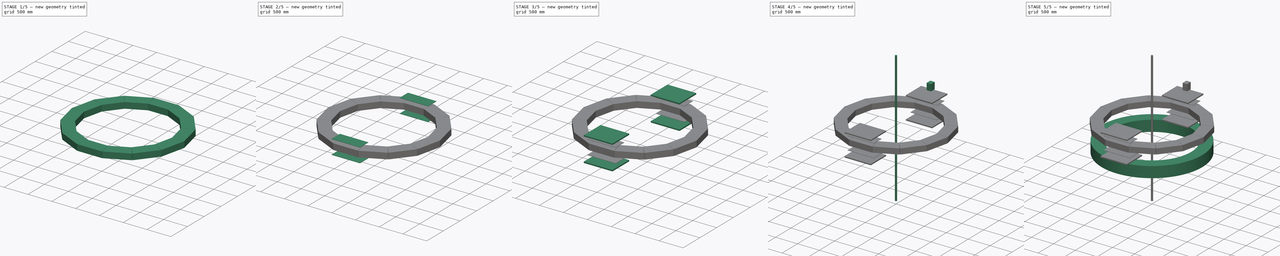
[diagram: build sequence overview — one tinted view per stage of 5, left to right]
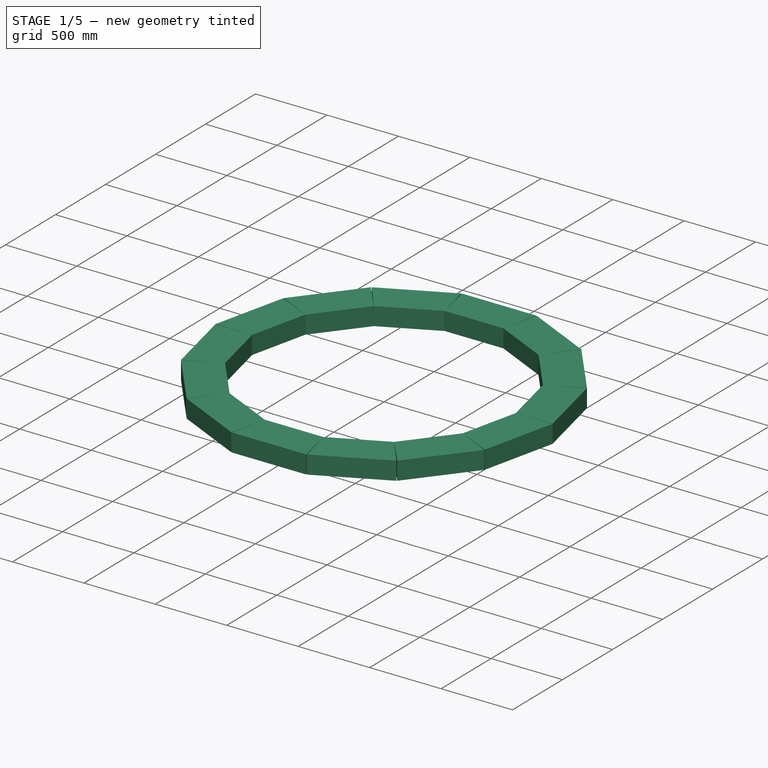
[diagram: stage 1 of 5 — iso view after this stage's code; geometry added in this stage tinted green]
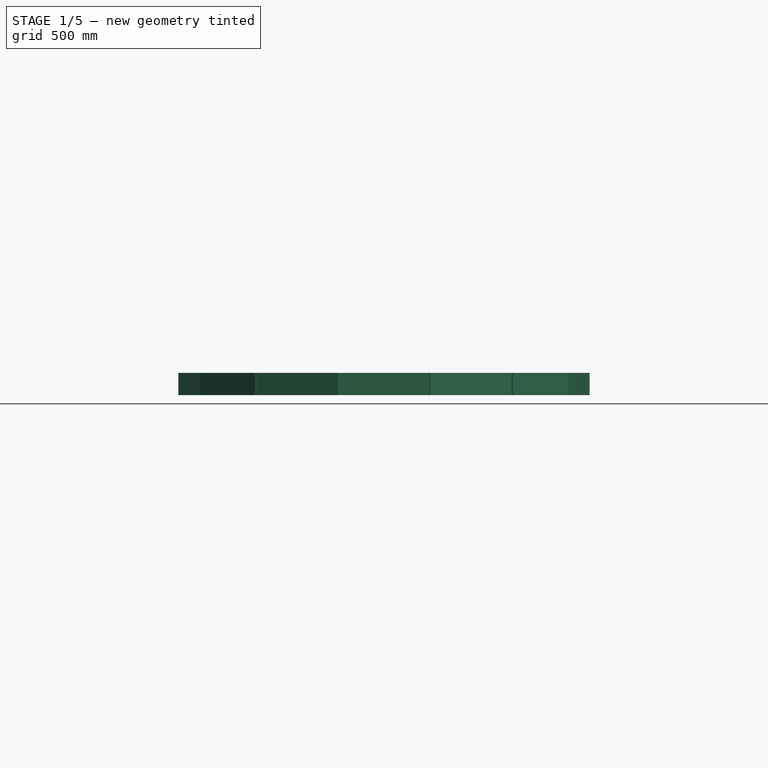
[diagram: stage 1 of 5 — front view after this stage's code; geometry added in this stage tinted green]
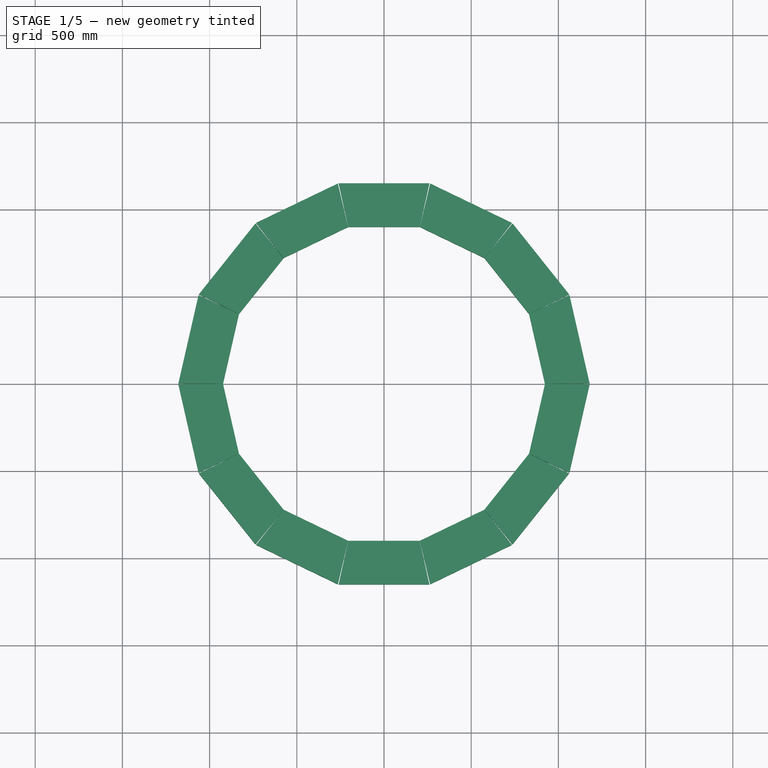
[diagram: stage 1 of 5 — top view after this stage's code; geometry added in this stage tinted green]
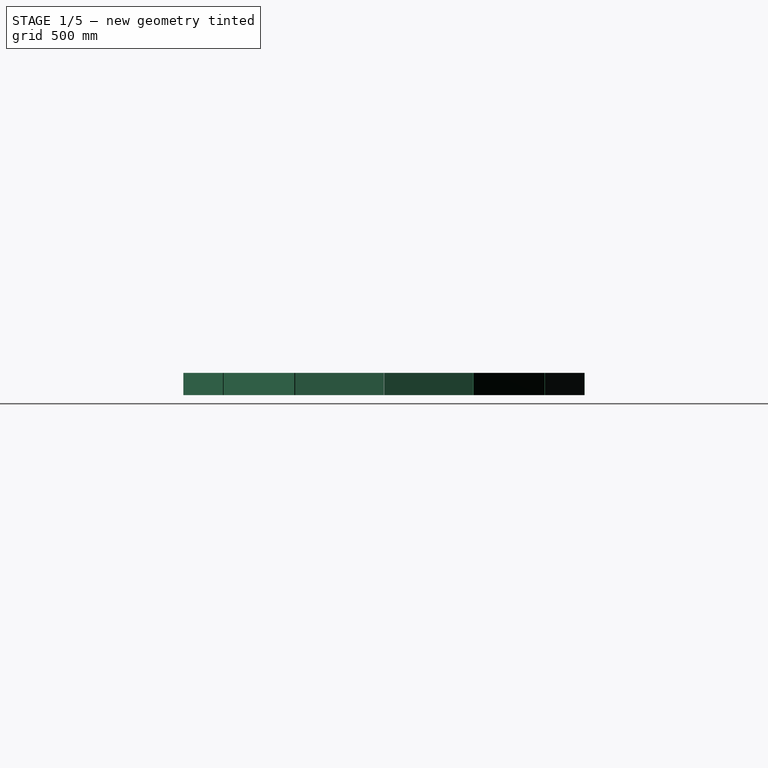
[diagram: stage 1 of 5 — right view after this stage's code; geometry added in this stage tinted green]
FCSTD DOCUMENT  (FreeCAD 0.16R)
Label: Pb_GEM_TS_Lucite_TS_GEM_PbF2
License: CreativeCommons Attribution-NonCommercial-ShareAlike
LicenseURL: http://creativecommons.org/licenses/by-nc-sa/4.0/
objects: Part::FeaturePython×8, Raytracing::RayFeature×7, Sketcher::SketchObject×5, Part::Cylinder×3, PartDesign::Pad×3, Part::Cut×1, Part::Box×1, Part::Loft×1, Raytracing::RayProject×1
note: 25 computed .brp shape members not serialized (recipe doc carries the construction recipe); baked Part::Feature solids carry a one-line shape summary decoded from their .brp

FEATURE [Sketcher::SketchObject] Sketch  label="LuciteProfile"
  sketch-geometry (4):
    g0: LineSegment StartX=205 StartY=900 StartZ=0 EndX=260 EndY=1150 EndZ=0
    g1: LineSegment StartX=260 StartY=1150 StartZ=0 EndX=-260 EndY=1150 EndZ=0
    g2: LineSegment StartX=-260 StartY=1150 StartZ=0 EndX=-205 EndY=900 EndZ=0
    g3: LineSegment StartX=-205 StartY=900 StartZ=0 EndX=205 EndY=900 EndZ=0
  constraints (12):
    c: Coincident(g0,g1)
    c: Horizontal(g1)
    c: Coincident(g1,g2)
    c: Coincident(g2,g3)
    c: Coincident(g3,g0)
    c: Horizontal(g3)
    c: Symmetric(g1,g0,g-2)
    c: Symmetric(g2,g0,g-2)
    c: Distance(g1) = 520
    c: Distance(g3) = 410
    c: DistanceY(g2,g1) = 250
    c: DistanceY(g-1,g2) = 900
FEATURE [PartDesign::Pad] Pad  label="LuciteModule"
  Length = 25.4
  Length2 = 100
  Sketch = -> Sketch
  Type = 0
FEATURE [Sketcher::SketchObject] Sketch003  label="LightGuideLucite"
  Placement = pos=(0,1150,0) rot=(0,0.707107,0.707107;3.14159rad)
  sketch-geometry (4):
    g0: LineSegment StartX=-260 StartY=0 StartZ=0 EndX=260 EndY=0 EndZ=0
    g1: LineSegment StartX=260 StartY=0 StartZ=0 EndX=260 EndY=127 EndZ=0
    g2: LineSegment StartX=260 StartY=127 StartZ=0 EndX=-260 EndY=127 EndZ=0
    g3: LineSegment StartX=-260 StartY=127 StartZ=0 EndX=-260 EndY=0 EndZ=0
  constraints (12):
    c: Coincident(g0,g1)
    c: Coincident(g1,g2)
    c: Coincident(g2,g3)
    c: Coincident(g3,g0)
    c: Horizontal(g0)
    c: Horizontal(g2)
    c: Vertical(g1)
    c: Vertical(g3)
    c: PointOnObject(g0,g-1)
    c: Symmetric(g2,g1,g-2)
    c: Distance(g2) = 520
    c: Distance(g3) = 127
FEATURE [Sketcher::SketchObject] Sketch004  label="LightGuidePMT"
  Placement = pos=(0,1400,0) rot=(1,0,0;1.5708rad)
  sketch-geometry (4):
    g0: LineSegment StartX=-63.5 StartY=0 StartZ=0 EndX=63.5 EndY=0 EndZ=0
    g1: LineSegment StartX=63.5 StartY=0 StartZ=0 EndX=63.5 EndY=127 EndZ=0
    g2: LineSegment StartX=63.5 StartY=127 StartZ=0 EndX=-63.5 EndY=127 EndZ=0
    g3: LineSegment StartX=-63.5 StartY=127 StartZ=0 EndX=-63.5 EndY=0 EndZ=0
  constraints (12):
    c: Coincident(g0,g1)
    c: Coincident(g1,g2)
    c: Coincident(g2,g3)
    c: Coincident(g3,g0)
    c: Horizontal(g0)
    c: Horizontal(g2)
    c: Vertical(g1)
    c: Vertical(g3)
    c: PointOnObject(g0,g-1)
    c: Equal(g3,g2)
    c: Symmetric(g2,g1,g-2)
    c: Distance(g2) = 127
FEATURE [Part::FeaturePython] Array007  label="LuciteDetector"  # Draft array (typed FeaturePython)
  Angle = 360
  ArrayType = 0
  Axis = (0,0,1)
  Base = -> Pad
  Center = (0,0,0)
  Fuse = false
  IntervalAxis = (0,0,0)
  IntervalX = (0,0,0)
  IntervalY = (0,0,0)
  IntervalZ = (0,0,25.4)
  NumberPolar = 1
  NumberX = 1
  NumberY = 1
  NumberZ = 5
FEATURE [Part::Loft] Loft  label="LightGuideModule"
  Closed = false
  Ruled = false
  Sections = -> [Sketch003,Sketch004]
  Solid = false
FEATURE [Part::FeaturePython] Array012  label="Lucite"  # Draft array (typed FeaturePython)
  Angle = 360
  ArrayType = 1
  Axis = (0,0,1)
  Base = -> Array007
  Center = (0,0,0)
  Fuse = false
  IntervalAxis = (0,0,0)
  IntervalX = (0,0,0)
  IntervalY = (-5,0,0)
  IntervalZ = (0,0,0)
  NumberPolar = 14
  NumberX = 1
  NumberY = 1
  NumberZ = 1
  Placement = pos=(0,0,500) rot=(0,0,1;0rad)
FEATURE [Part::FeaturePython] Array013  label="LightGuide"  # Draft array (typed FeaturePython)
  Angle = 360
  ArrayType = 1
  Axis = (0,0,1)
  Base = -> Loft
  Center = (0,0,0)
  Fuse = false
  IntervalAxis = (0,0,0)
  IntervalX = (1,0,0)
  IntervalY = (0,1,0)
  IntervalZ = (0,0,0)
  NumberPolar = 14
  NumberX = 1
  NumberY = 1
  NumberZ = 1
  Placement = pos=(0,0,500) rot=(0,0,1;0rad)
FEATURE [Raytracing::RayFeature] Cut_View
  Result = <blob: 343908 chars omitted>
  Source = -> Cut
  Transparency = 75
FEATURE [Raytracing::RayFeature] Array006_View
  Result = <blob: 74975 chars omitted>
  Source = -> Array006
  Transparency = 50
FEATURE [Raytracing::RayFeature] Cylinder002_View
  Result = <blob: 24583 chars omitted>
  Source = -> Cylinder002
  Transparency = 0
FEATURE [Raytracing::RayFeature] Array008_View
  Result = <blob: 10871 chars omitted>
  Source = -> Array008
  Transparency = 10
FEATURE [Raytracing::RayFeature] Array011_View
  Result = <blob: 11055 chars omitted>
  Source = -> Array011
  Transparency = 50
FEATURE [Raytracing::RayFeature] Array013_View
  Result = <blob: 1947668 chars omitted>
  Source = -> Array013
  Transparency = 0
FEATURE [Raytracing::RayFeature] Array012_View
  Result = <blob: 205583 chars omitted>
  Source = -> Array012
  Transparency = 50
FEATURE [Raytracing::RayProject] PovProject
  Camera = // declares positon and view direction\n\n// Generated by FreeCAD (http://www.freecadweb.org/)\n#declare cam_location =  <-1542.98,-454.674,1387.84>;\n#declare cam_look_at  = <-29.3147,470.562,768.261>;\n#declare cam_sky      = <0.309302,0.12525,0.942679>;\n#declare cam_angle    = 45; \ncamera {\n  location  cam_location\n  look_at   cam_look_at\n  sky       cam_sky\n  angle     cam_angle \n  right x*800/600\n}
  Group = -> [Cut_View,Array006_View,Cylinder002_View,Array008_View,Array011_View,Array013_View,Array012_View]
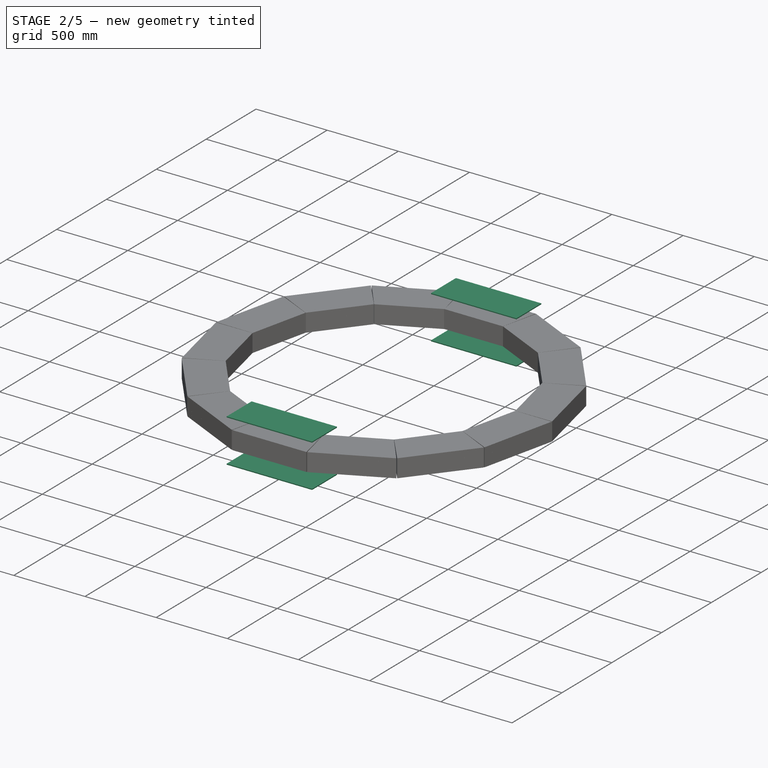
[diagram: stage 2 of 5 — iso view after this stage's code; geometry added in this stage tinted green]
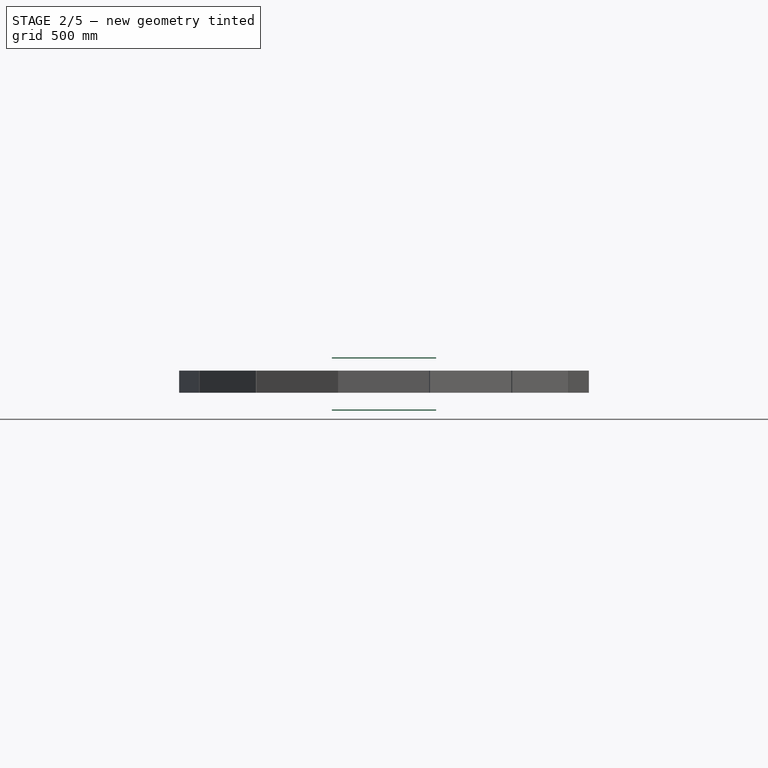
[diagram: stage 2 of 5 — front view after this stage's code; geometry added in this stage tinted green]
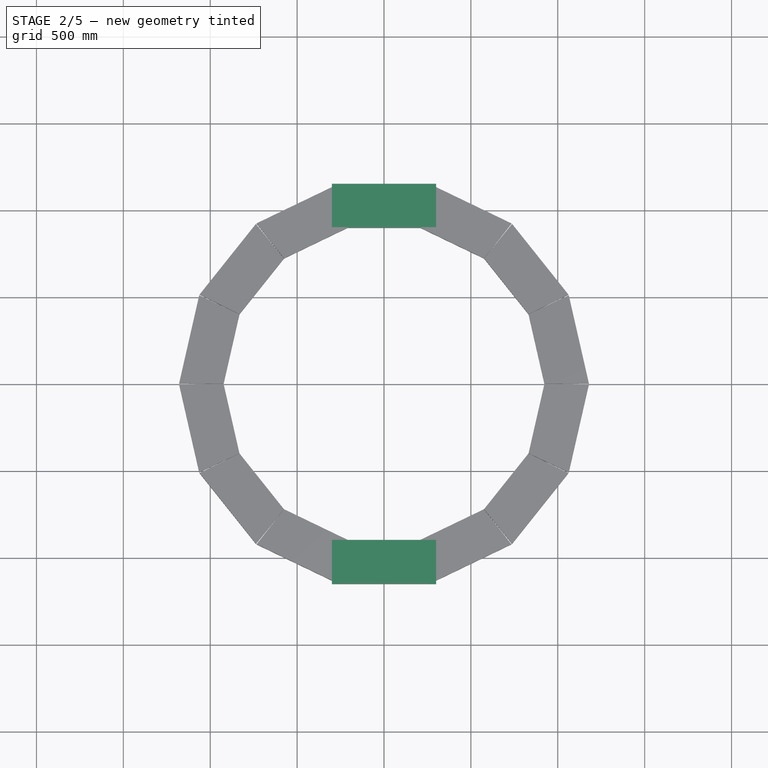
[diagram: stage 2 of 5 — top view after this stage's code; geometry added in this stage tinted green]
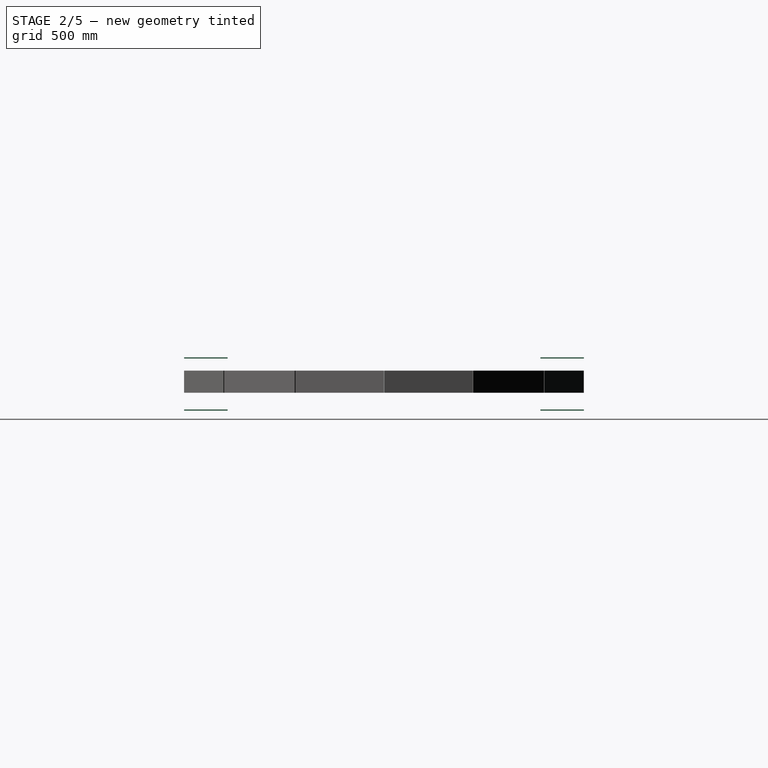
[diagram: stage 2 of 5 — right view after this stage's code; geometry added in this stage tinted green]
FEATURE [Sketcher::SketchObject] Sketch002  label="TSProfile"
  sketch-geometry (4):
    g0: LineSegment StartX=-300 StartY=900 StartZ=0 EndX=300 EndY=900 EndZ=0
    g1: LineSegment StartX=300 StartY=900 StartZ=0 EndX=300 EndY=1150 EndZ=0
    g2: LineSegment StartX=300 StartY=1150 StartZ=0 EndX=-300 EndY=1150 EndZ=0
    g3: LineSegment StartX=-300 StartY=1150 StartZ=0 EndX=-300 EndY=900 EndZ=0
  constraints (12):
    c: Coincident(g0,g1)
    c: Coincident(g1,g2)
    c: Coincident(g2,g3)
    c: Coincident(g3,g0)
    c: Horizontal(g0)
    c: Horizontal(g2)
    c: Vertical(g1)
    c: Vertical(g3)
    c: Symmetric(g0,g0,g-2)
    c: Distance(g3) = 250
    c: Distance(g2) = 600
    c: DistanceY(g-1,g0) = 900
FEATURE [PartDesign::Pad] Pad002  label="TSModule"
  Length = 6.35
  Length2 = 100
  Midplane = true
  Sketch = -> Sketch002
  Type = 0
FEATURE [Part::FeaturePython] Array010  label="TSPair"  # Draft array (typed FeaturePython)
  Angle = 360
  ArrayType = 0
  Axis = (0,0,1)
  Base = -> Pad002
  Center = (0,0,0)
  Fuse = false
  IntervalAxis = (0,0,0)
  IntervalX = (0,0,0)
  IntervalY = (0,0,0)
  IntervalZ = (0,0,300)
  NumberPolar = 1
  NumberX = 1
  NumberY = 1
  NumberZ = 2
  Placement = pos=(0,0,400) rot=(0,0,1;0rad)
FEATURE [Part::FeaturePython] Array011  label="TS"  # Draft array (typed FeaturePython)
  Angle = 180
  ArrayType = 1
  Axis = (0,0,1)
  Base = -> Array010
  Center = (0,0,0)
  Fuse = false
  IntervalAxis = (0,0,0)
  IntervalX = (0,0,0)
  IntervalY = (0,0,0)
  IntervalZ = (0,0,0)
  NumberPolar = 2
  NumberX = 1
  NumberY = 1
  NumberZ = 1
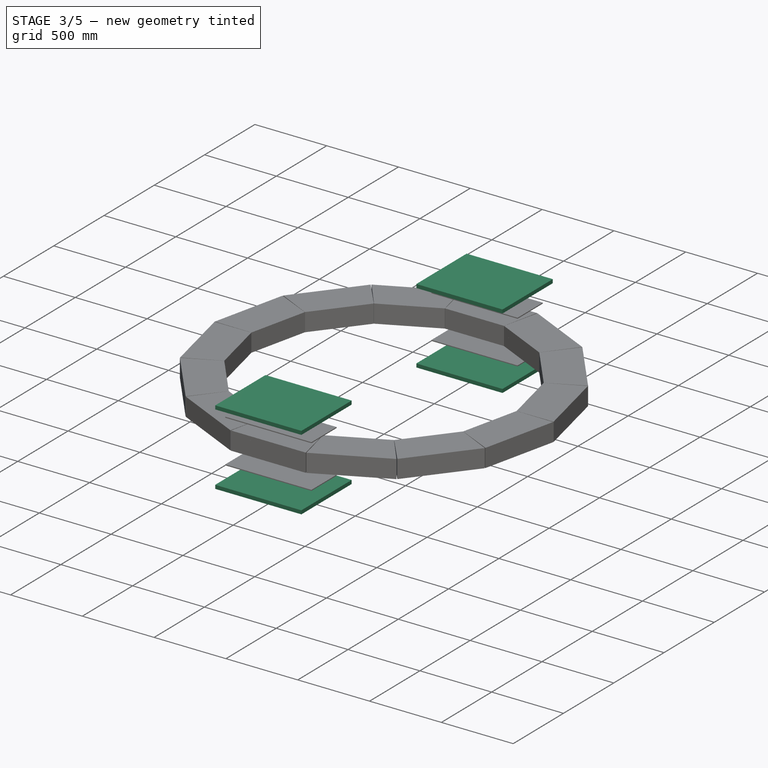
[diagram: stage 3 of 5 — iso view after this stage's code; geometry added in this stage tinted green]
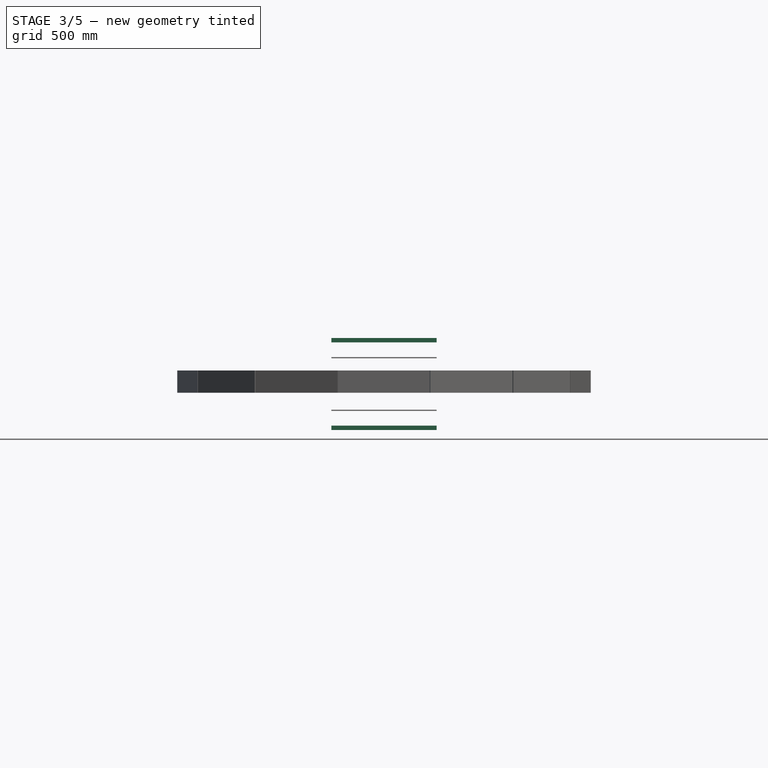
[diagram: stage 3 of 5 — front view after this stage's code; geometry added in this stage tinted green]
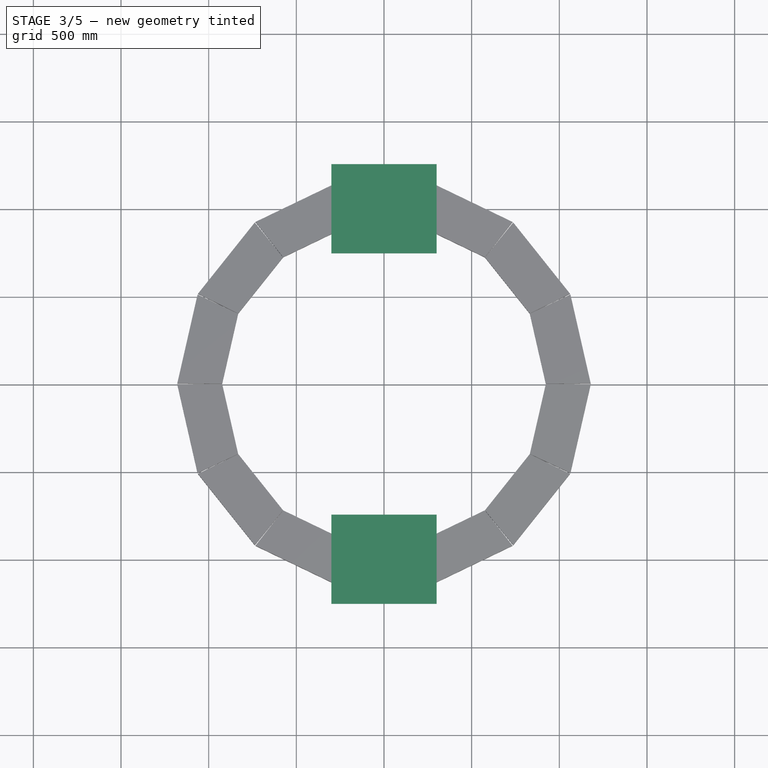
[diagram: stage 3 of 5 — top view after this stage's code; geometry added in this stage tinted green]
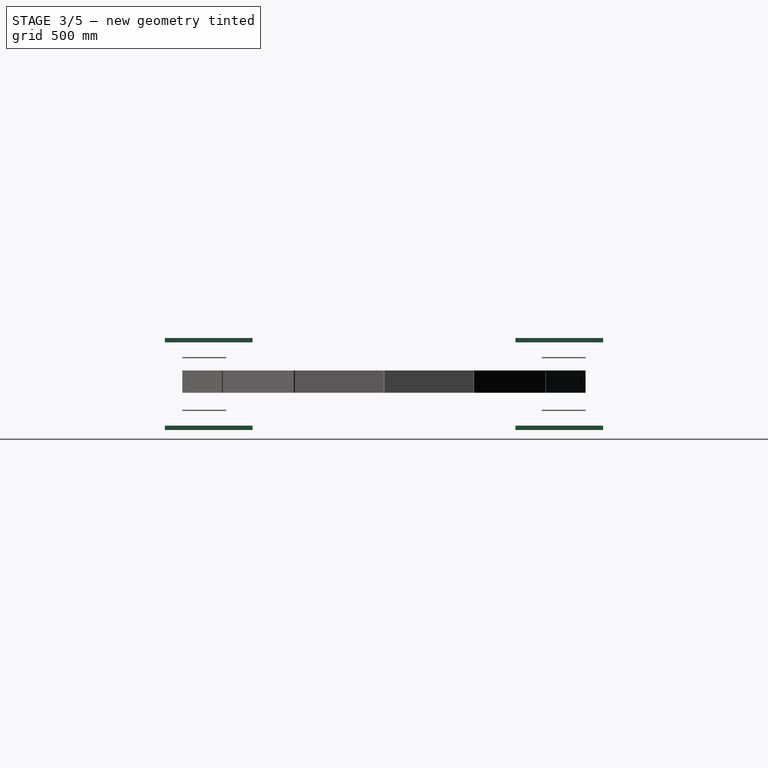
[diagram: stage 3 of 5 — right view after this stage's code; geometry added in this stage tinted green]
FEATURE [Sketcher::SketchObject] Sketch001  label="GEMProfile"
  sketch-geometry (4):
    g0: LineSegment StartX=-300 StartY=750 StartZ=0 EndX=300 EndY=750 EndZ=0
    g1: LineSegment StartX=300 StartY=750 StartZ=0 EndX=300 EndY=1250 EndZ=0
    g2: LineSegment StartX=300 StartY=1250 StartZ=0 EndX=-300 EndY=1250 EndZ=0
    g3: LineSegment StartX=-300 StartY=1250 StartZ=0 EndX=-300 EndY=750 EndZ=0
  constraints (12):
    c: Coincident(g0,g1)
    c: Coincident(g1,g2)
    c: Coincident(g2,g3)
    c: Coincident(g3,g0)
    c: Horizontal(g0)
    c: Horizontal(g2)
    c: Vertical(g1)
    c: Vertical(g3)
    c: Symmetric(g0,g0,g-2)
    c: Distance(g0) = 600
    c: Distance(g3) = 500
    c: DistanceY(g-1,g0) = 750
FEATURE [PartDesign::Pad] Pad001  label="GEMModule"
  Length = 25.4
  Length2 = 100
  Midplane = true
  Sketch = -> Sketch001
  Type = 0
FEATURE [Part::FeaturePython] Array  label="GEMPair"  # Draft array (typed FeaturePython)
  Angle = 360
  ArrayType = 0
  Axis = (0,0,1)
  Base = -> Pad001
  Center = (0,0,0)
  Fuse = false
  IntervalAxis = (0,0,0)
  IntervalX = (0,0,0)
  IntervalY = (0,0,0)
  IntervalZ = (0,0,500)
  NumberPolar = 1
  NumberX = 1
  NumberY = 1
  NumberZ = 2
  Placement = pos=(0,0,300) rot=(0,0,1;0rad)
FEATURE [Part::FeaturePython] Array008  label="GEM"  # Draft array (typed FeaturePython)
  Angle = 180
  ArrayType = 1
  Axis = (0,0,1)
  Base = -> Array
  Center = (0,0,0)
  Fuse = false
  IntervalAxis = (0,0,0)
  IntervalX = (0,0,0)
  IntervalY = (0,0,0)
  IntervalZ = (0,0,0)
  NumberPolar = 2
  NumberX = 1
  NumberY = 1
  NumberZ = 1
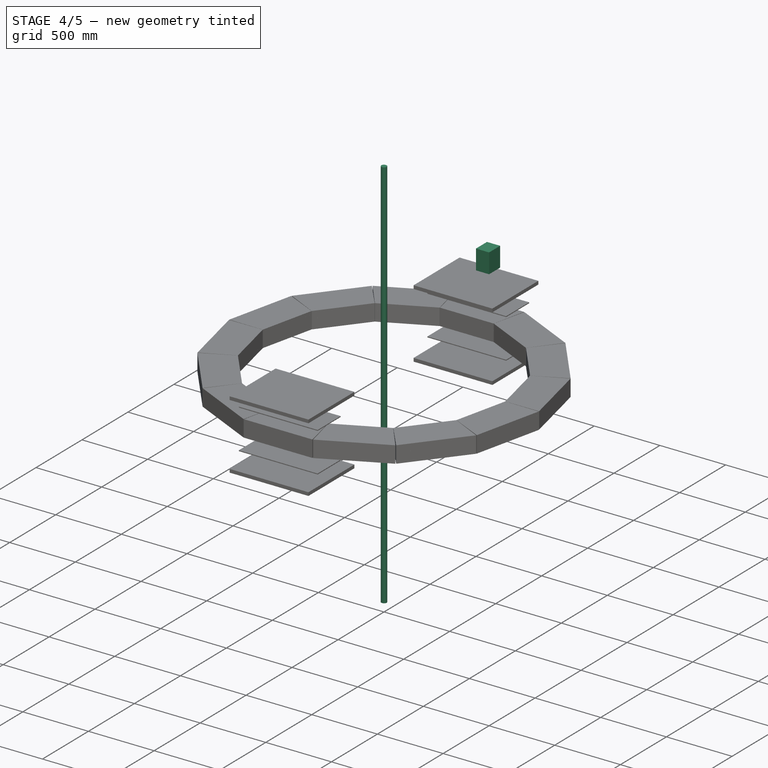
[diagram: stage 4 of 5 — iso view after this stage's code; geometry added in this stage tinted green]
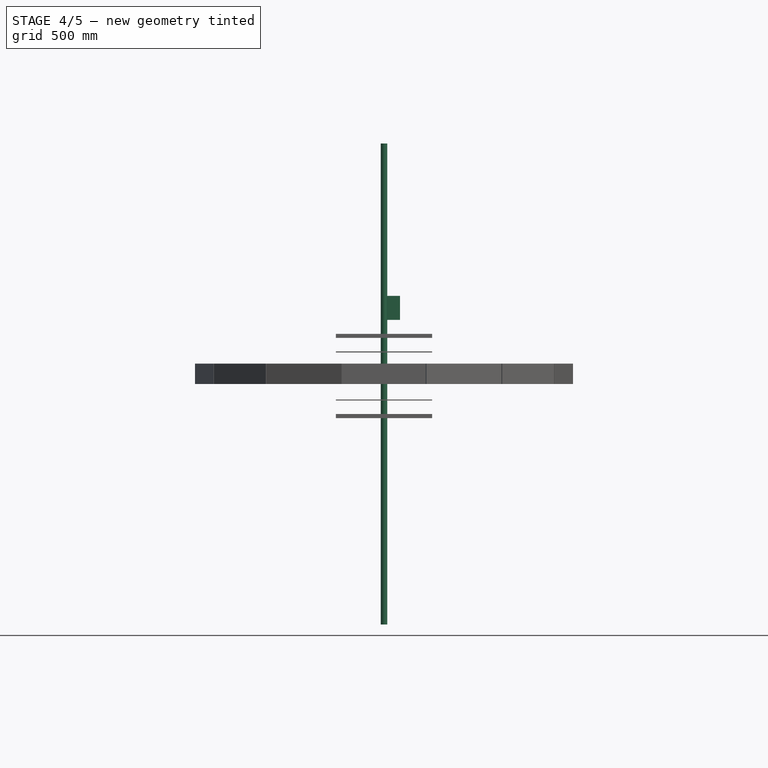
[diagram: stage 4 of 5 — front view after this stage's code; geometry added in this stage tinted green]
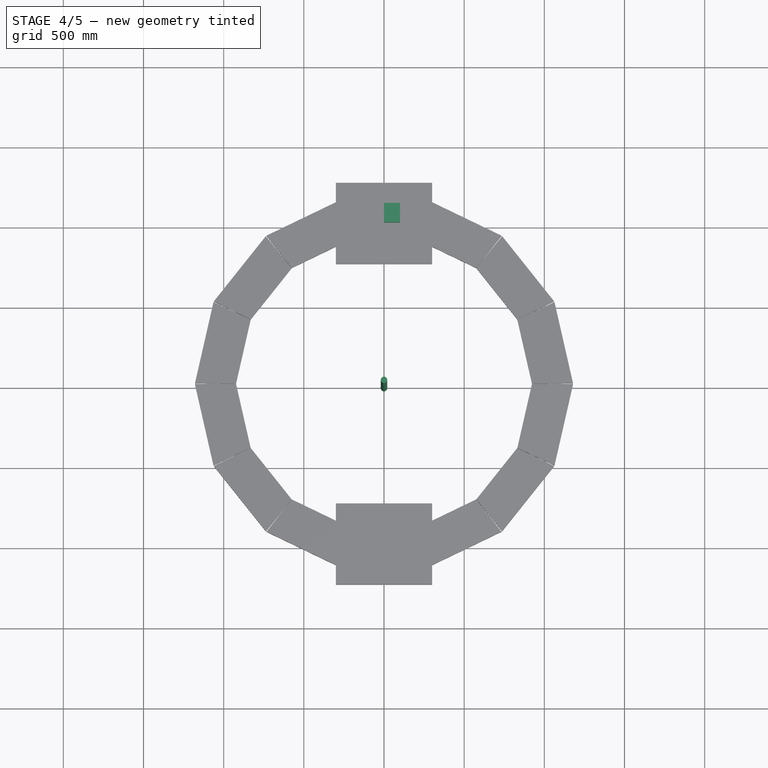
[diagram: stage 4 of 5 — top view after this stage's code; geometry added in this stage tinted green]
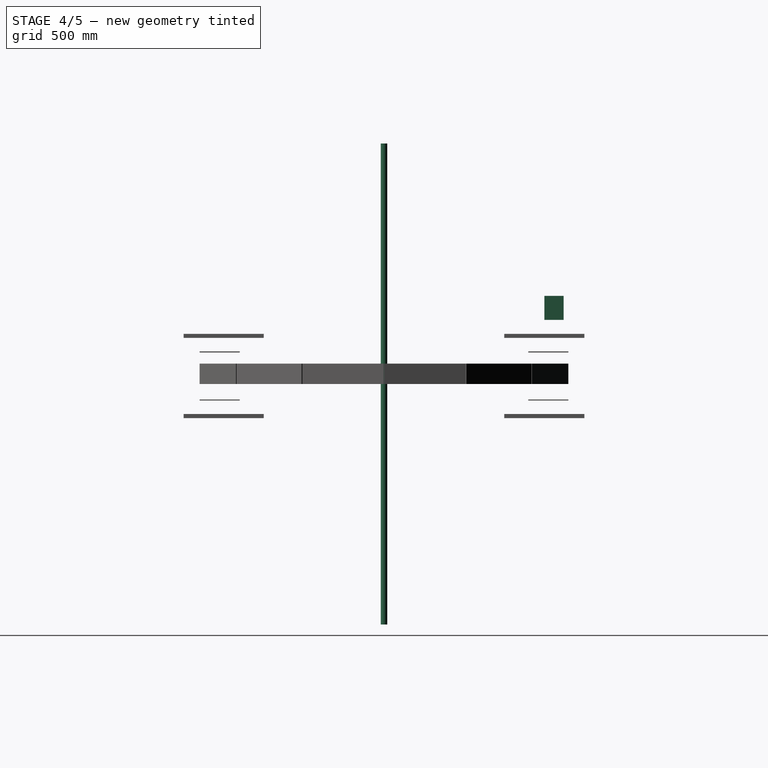
[diagram: stage 4 of 5 — right view after this stage's code; geometry added in this stage tinted green]
FEATURE [Part::Box] Box002  label="CalorimeterModule"
  Height = 150
  Length = 20
  Width = 20
FEATURE [Part::FeaturePython] Array006  label="CalorimeterArray"  # Draft array (typed FeaturePython)
  Angle = 360
  ArrayType = 0
  Axis = (0,0,1)
  Base = -> Box002
  Center = (0,0,0)
  Fuse = false
  IntervalAxis = (0,0,0)
  IntervalX = (20,0,0)
  IntervalY = (0,20,0)
  IntervalZ = (0,0,0)
  NumberPolar = 1
  NumberX = 5
  NumberY = 6
  NumberZ = 1
  Placement = pos=(0,1000,900) rot=(0,0,1;0rad)
FEATURE [Part::Cylinder] Cylinder002  label="Beam"
  Angle = 360
  Height = 3000
  Placement = pos=(0,0,-1000) rot=(0,0,1;0rad)
  Radius = 20
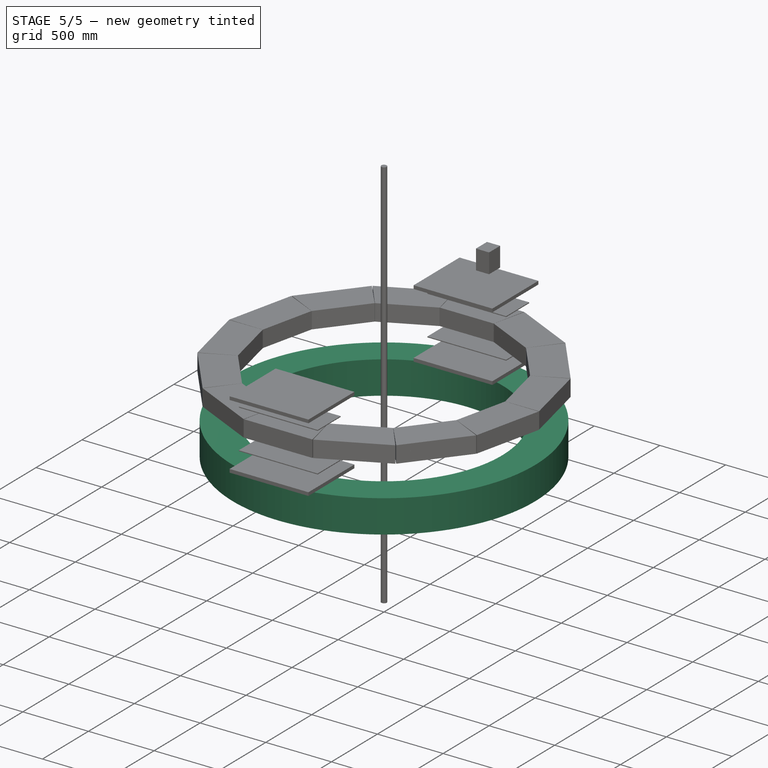
[diagram: stage 5 of 5 — iso view after this stage's code; geometry added in this stage tinted green]
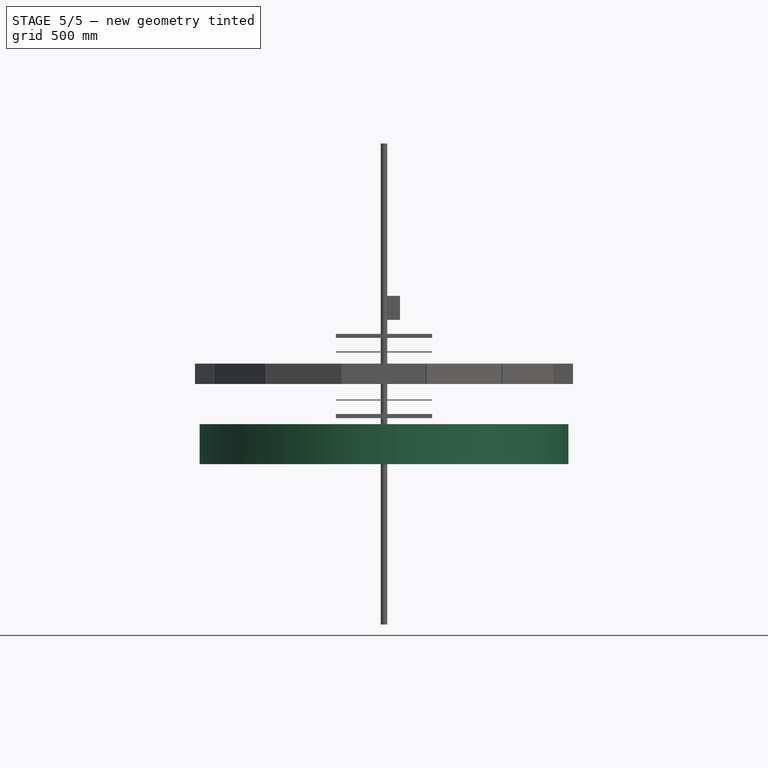
[diagram: stage 5 of 5 — front view after this stage's code; geometry added in this stage tinted green]
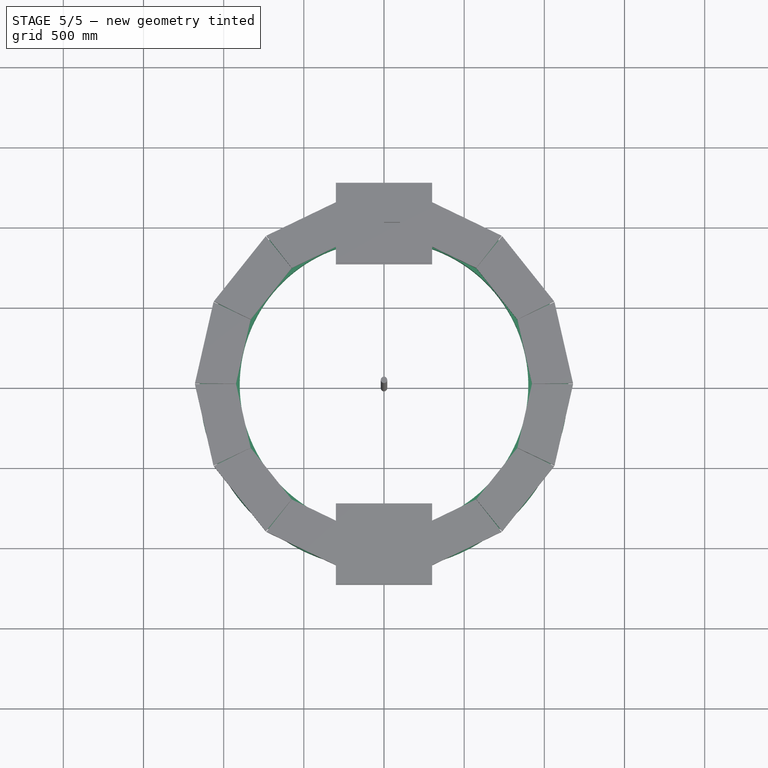
[diagram: stage 5 of 5 — top view after this stage's code; geometry added in this stage tinted green]
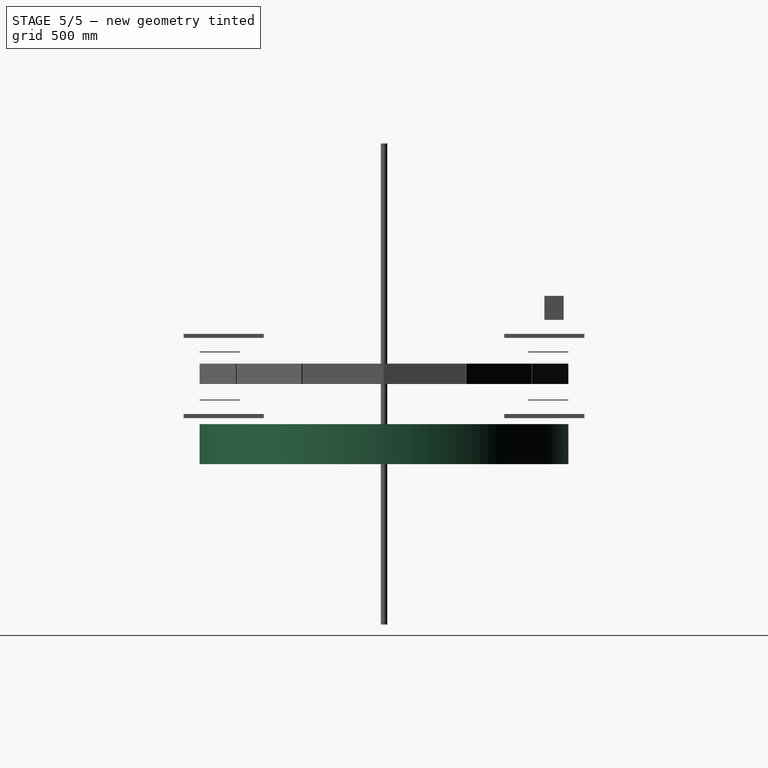
[diagram: stage 5 of 5 — right view after this stage's code; geometry added in this stage tinted green]
FEATURE [Part::Cylinder] Cylinder  label="PbTorusOuter"
  Angle = 360
  Height = 250
  Radius = 1150
FEATURE [Part::Cylinder] Cylinder001  label="PbTorusInner"
  Angle = 360
  Height = 250
  Radius = 900
FEATURE [Part::Cut] Cut  label="PbTorus"
  Base = -> Cylinder
  Tool = -> Cylinder001
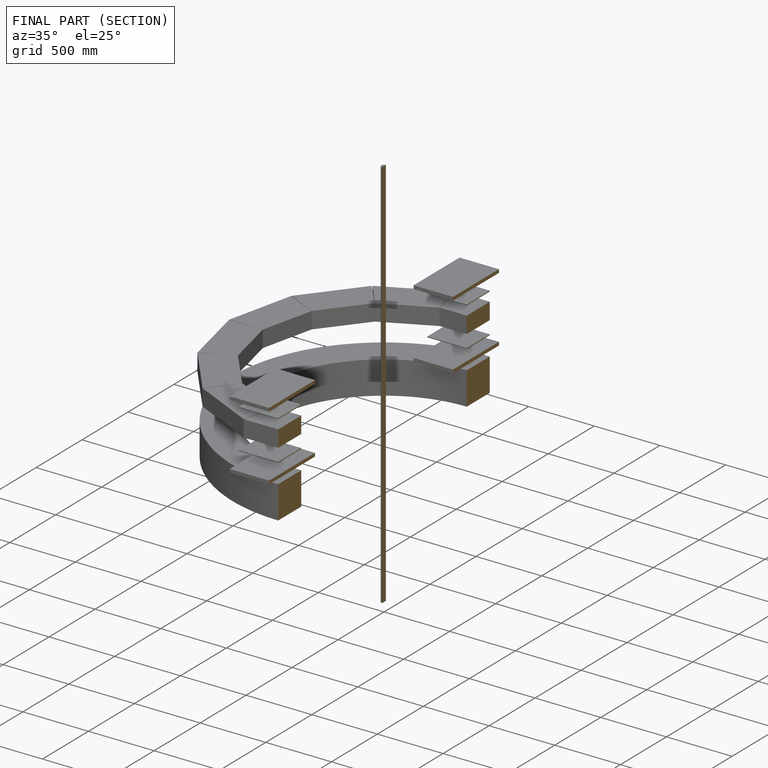
[diagram: finished part — half-section view (interior)]
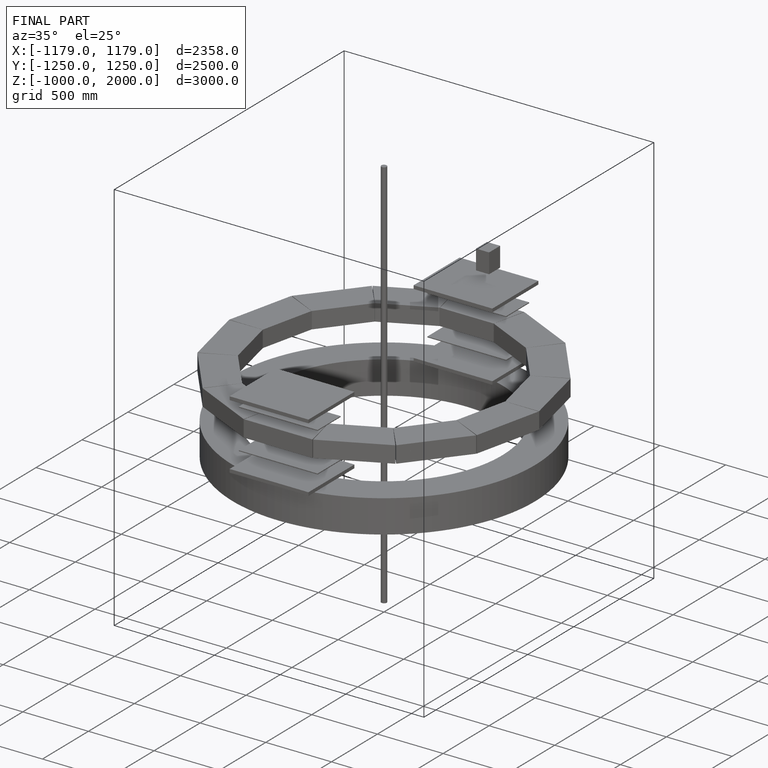
[diagram: finished part — iso view with bounding-box wireframe]
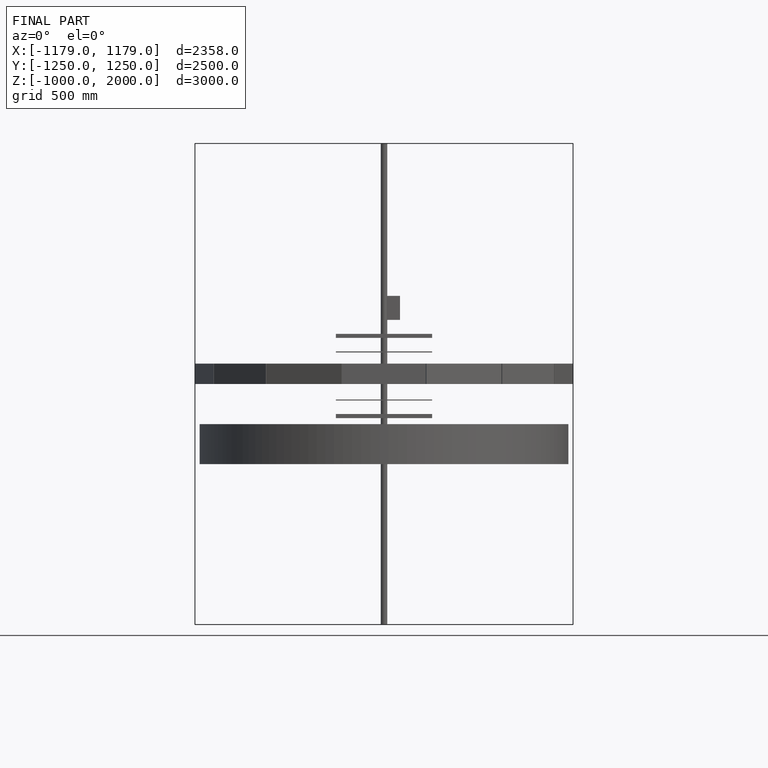
[diagram: finished part — front view with bounding-box wireframe]
